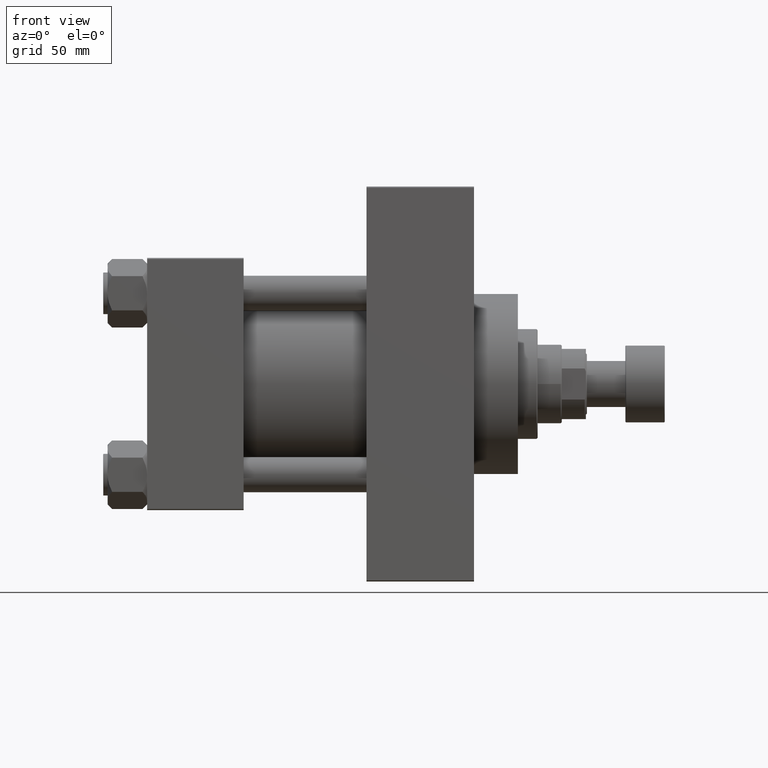
[diagram: clean part render]
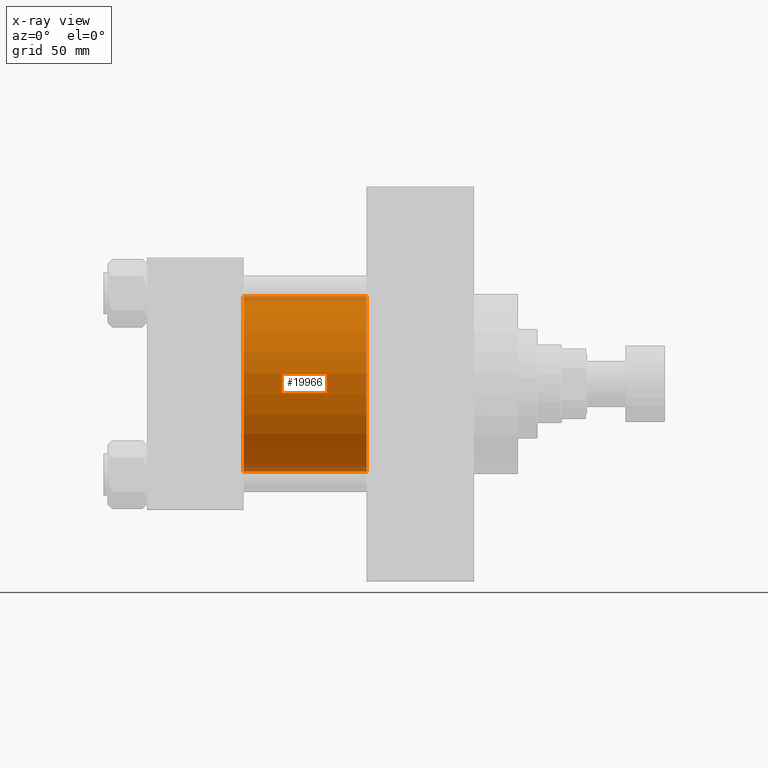
[diagram: x-ray — body ghosted, one internal face saturated and labeled with its STEP entity id]
A machine part, front view, then the same camera in x-ray: the body is ghosted and one INTERNAL B-rep face — a face not visible from any outside direction — is saturated and labeled: STEP entity #19966.
In plain terms, the highlighted cylindrical surface (partial cylindrical patch) has radius 40 mm, axis along (-1, -0, -0).
Its self-contained STEP definition (entity closure, byte-faithful):
#392 = CIRCLE ( 'NONE', #11276, 40.00000000000000000 ) ;
#688 = ORIENTED_EDGE ( 'NONE', *, *, #34019, .T. ) ;
#2263 = DIRECTION ( 'NONE',  ( -1.000000000000000000, -0.000000000000000000, -0.000000000000000000 ) ) ;
#2875 = EDGE_CURVE ( 'NONE', #45279, #31352, #35282, .T. ) ;
#4047 = VERTEX_POINT ( 'NONE', #29340 ) ;
#6018 = DIRECTION ( 'NONE',  ( 1.000000000000000000, 0.000000000000000000, 0.000000000000000000 ) ) ;
#6282 = CARTESIAN_POINT ( 'NONE',  ( 100.0000000000000000, -2.602085213965210642E-15, 40.00000000000000000 ) ) ;
#9713 = DIRECTION ( 'NONE',  ( -1.000000000000000000, -0.000000000000000000, -0.000000000000000000 ) ) ;
#9890 = DIRECTION ( 'NONE',  ( 1.000000000000000000, 0.000000000000000000, 0.000000000000000000 ) ) ;
#10665 = VECTOR ( 'NONE', #36853, 1000.000000000000000 ) ;
#11276 = AXIS2_PLACEMENT_3D ( 'NONE', #47609, #9890, #43722 ) ;
#13231 = CARTESIAN_POINT ( 'NONE',  ( 100.0000000000000000, -2.602085213965210642E-15, 0.000000000000000000 ) ) ;
#17451 = CARTESIAN_POINT ( 'NONE',  ( 44.00000000000000000, -2.602085213965210642E-15, 40.00000000000000000 ) ) ;
#19966 = ADVANCED_FACE ( 'NONE', ( #43416 ), #21028, .F. ) ;
#21028 = CYLINDRICAL_SURFACE ( 'NONE', #34661, 40.00000000000000000 ) ;
#21860 = DIRECTION ( 'NONE',  ( 0.000000000000000000, 0.000000000000000000, -1.000000000000000000 ) ) ;
#24446 = DIRECTION ( 'NONE',  ( 0.000000000000000000, 0.000000000000000000, 1.000000000000000000 ) ) ;
#28356 = ORIENTED_EDGE ( 'NONE', *, *, #31907, .F. ) ;
#29340 = CARTESIAN_POINT ( 'NONE',  ( 44.00000000000000000, 2.296501982624201990E-15, -40.00000000000000000 ) ) ;
#30337 = VECTOR ( 'NONE', #9713, 1000.000000000000000 ) ;
#30642 = AXIS2_PLACEMENT_3D ( 'NONE', #33046, #6018, #21860 ) ;
#31352 = VERTEX_POINT ( 'NONE', #17451 ) ;
#31907 = EDGE_CURVE ( 'NONE', #31352, #4047, #41514, .T. ) ;
#32066 = LINE ( 'NONE', #35959, #10665 ) ;
#33046 = CARTESIAN_POINT ( 'NONE',  ( 44.00000000000000000, -2.602085213965210642E-15, 0.000000000000000000 ) ) ;
#33828 = EDGE_LOOP ( 'NONE', ( #688, #38118, #28356, #36008 ) ) ;
#34019 = EDGE_CURVE ( 'NONE', #45279, #37268, #392, .T. ) ;
#34661 = AXIS2_PLACEMENT_3D ( 'NONE', #13231, #2263, #24446 ) ;
#35282 = LINE ( 'NONE', #6282, #30337 ) ;
#35959 = CARTESIAN_POINT ( 'NONE',  ( 100.0000000000000000, 2.296501982624201990E-15, -40.00000000000000000 ) ) ;
#36008 = ORIENTED_EDGE ( 'NONE', *, *, #2875, .F. ) ;
#36853 = DIRECTION ( 'NONE',  ( -1.000000000000000000, -0.000000000000000000, -0.000000000000000000 ) ) ;
#37268 = VERTEX_POINT ( 'NONE', #39618 ) ;
#37336 = EDGE_CURVE ( 'NONE', #37268, #4047, #32066, .T. ) ;
#38118 = ORIENTED_EDGE ( 'NONE', *, *, #37336, .T. ) ;
#39618 = CARTESIAN_POINT ( 'NONE',  ( 100.0000000000000000, 2.296501982624201990E-15, -40.00000000000000000 ) ) ;
#41514 = CIRCLE ( 'NONE', #30642, 40.00000000000000000 ) ;
#43416 = FACE_OUTER_BOUND ( 'NONE', #33828, .T. ) ;
#43722 = DIRECTION ( 'NONE',  ( 0.000000000000000000, 0.000000000000000000, -1.000000000000000000 ) ) ;
#44189 = CARTESIAN_POINT ( 'NONE',  ( 100.0000000000000000, -2.602085213965210642E-15, 40.00000000000000000 ) ) ;
#45279 = VERTEX_POINT ( 'NONE', #44189 ) ;
#47609 = CARTESIAN_POINT ( 'NONE',  ( 100.0000000000000000, -2.602085213965210642E-15, 0.000000000000000000 ) ) ;